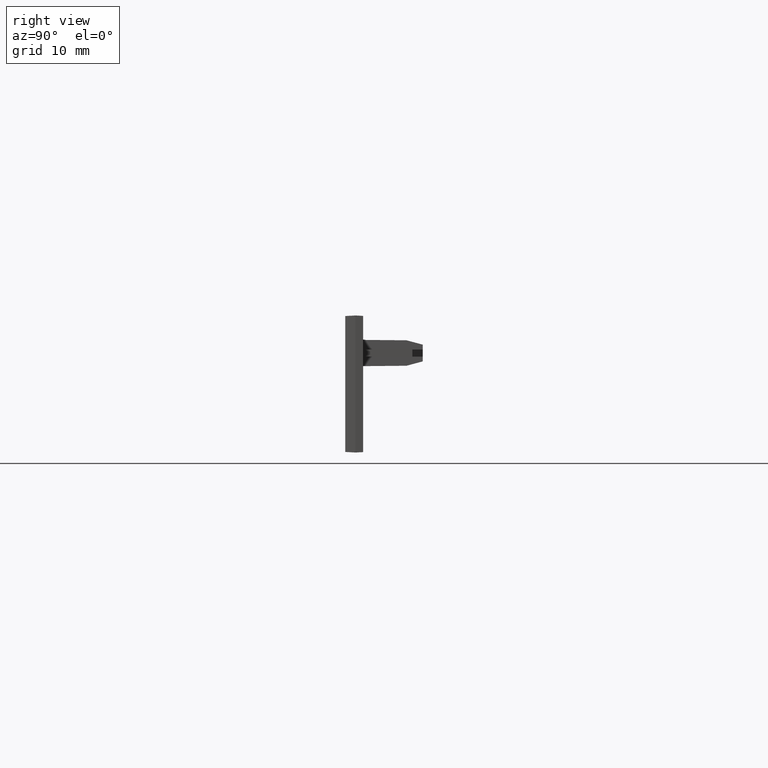
[diagram: clean part render]
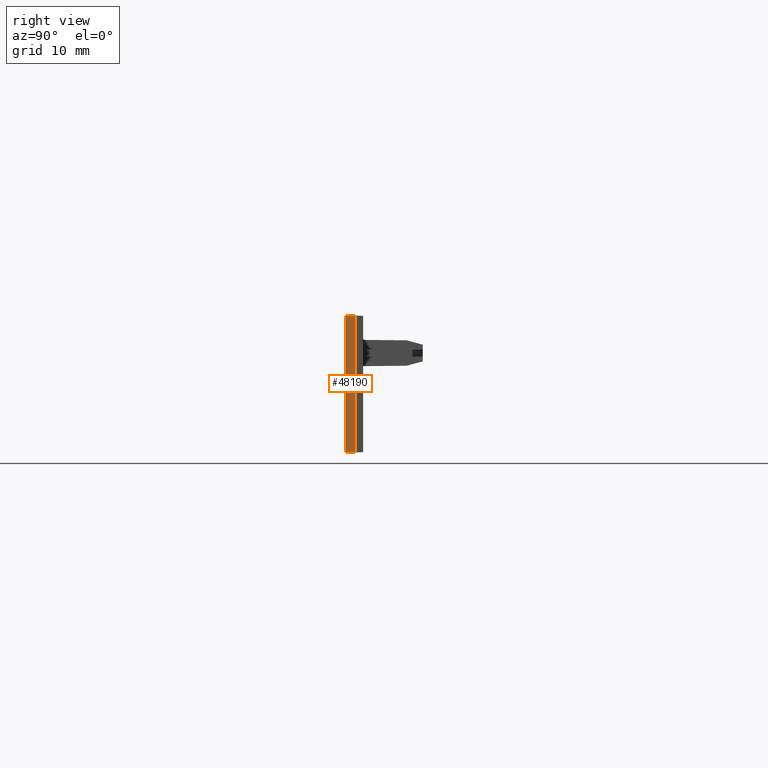
[diagram: same view with one face highlighted and labeled with its STEP entity id]
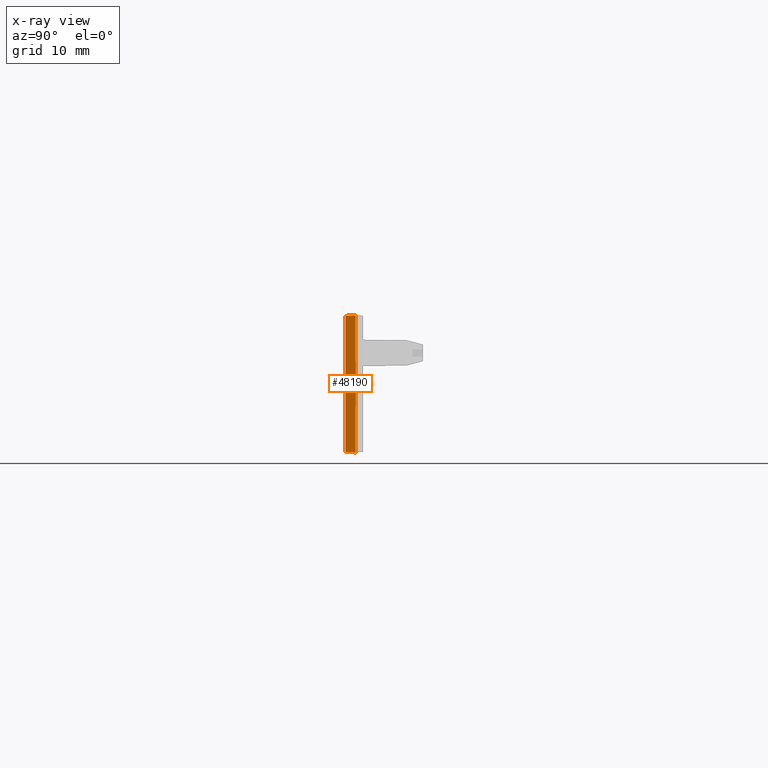
[diagram: x-ray of the same camera — body ghosted, the highlighted face saturated]
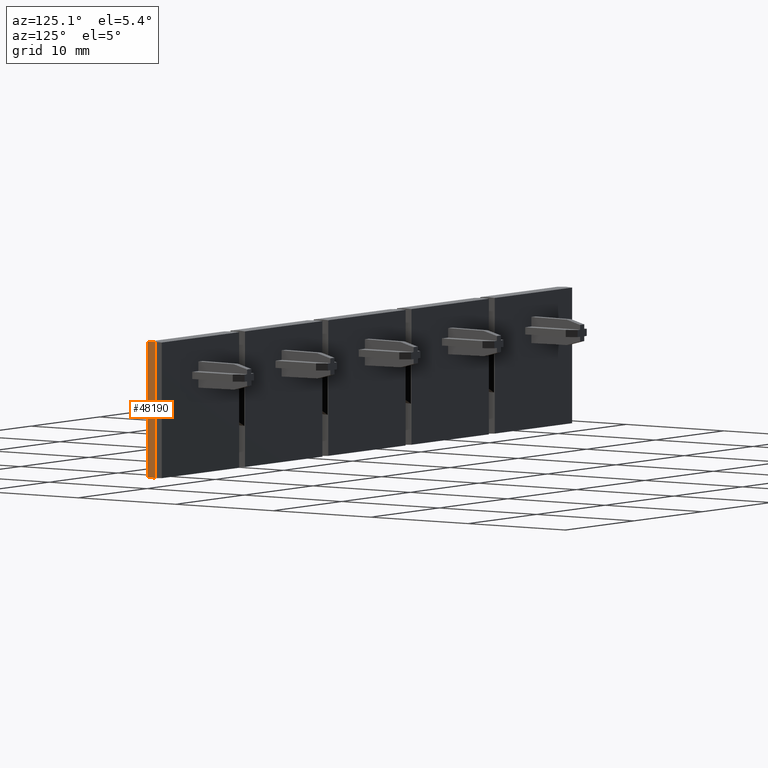
[diagram: same view with one face highlighted and labeled with its STEP entity id]
A machine part, right view. The second image highlights one B-rep face of the part: STEP entity #48190.
The next image is the same camera in x-ray: the body ghosted, the highlighted face saturated — about 0% of this face is hidden behind the body in this view.
A second angle (auxiliary view) of the same face is appended — the face is thin or edge-on in the first view.
In plain terms, the highlighted planar face has unit normal (-0.9986, 0.0523, -0).
Its self-contained STEP definition (entity closure, byte-faithful):
#14440=CARTESIAN_POINT('',(13.1177358666438,3.55633679794292,
-3.25499999997569));
#14450=VERTEX_POINT('',#14440);
#37390=CARTESIAN_POINT('',(13.1629727238767,4.41950785561214,
-3.20976312170207));
#37400=VERTEX_POINT('',#37390);
#37450=CARTESIAN_POINT('',(25.1869785550004,4.41950785561214,
-3.20976312172748));
#37460=DIRECTION('',(1.,-1.95344841822176E-24,-2.1134619990613E-12));
#37470=VECTOR('',#37460,1.);
#37480=LINE('',#37450,#37470);
#37490=CARTESIAN_POINT('',(24.5724989468498,4.41950785561214,
-3.20976312172618));
#37500=VERTEX_POINT('',#37490);
#37510=EDGE_CURVE('',#37400,#37500,#37480,.T.);
#43390=CARTESIAN_POINT('',(26.173556603604,-26.1304921377626,
-4.81082077847489));
#43400=DIRECTION('',(0.0522644276888608,-0.997264688634231,
-0.0522644276886815));
#43410=VECTOR('',#43400,1.);
#43420=LINE('',#43390,#43410);
#43430=CARTESIAN_POINT('',(24.6177358251237,3.5563367979429,-3.255));
#43440=VERTEX_POINT('',#43430);
#43450=EDGE_CURVE('',#37500,#43440,#43420,.T.);
#47980=CARTESIAN_POINT('',(14.0477118454716,3.55633679847646,
-3.2549999999497));
#47990=DIRECTION('',(2.11056557284397E-12,-0.0523359562428015,
0.998629534754581));
#48000=DIRECTION('',(1.1416764393489E-13,0.998629534754581,
0.0523359562428015));
#48010=AXIS2_PLACEMENT_3D('',#47980,#47990,#48000);
#48020=PLANE('',#48010);
#48030=CARTESIAN_POINT('',(23.9869785548615,3.55633679794293,
-3.25499999999866));
#48040=DIRECTION('',(-1.,3.55271367879687E-15,2.11364818889553E-12));
#48050=VECTOR('',#48040,1.);
#48060=LINE('',#48030,#48050);
#48070=EDGE_CURVE('',#43440,#14450,#48060,.T.);
#48080=ORIENTED_EDGE('',*,*,#48070,.T.);
#48090=ORIENTED_EDGE('',*,*,#43450,.T.);
#48100=ORIENTED_EDGE('',*,*,#37510,.T.);
#48110=CARTESIAN_POINT('',(11.5619150671153,-26.1304921377626,
-4.81082077844402));
#48120=DIRECTION('',(0.0522644276890959,0.997264688634231,
0.0522644276884606));
#48130=VECTOR('',#48120,1.);
#48140=LINE('',#48110,#48130);
#48150=EDGE_CURVE('',#14450,#37400,#48140,.T.);
#48160=ORIENTED_EDGE('',*,*,#48150,.T.);
#48170=EDGE_LOOP('',(#48160,#48100,#48090,#48080));
#48180=FACE_OUTER_BOUND('',#48170,.T.);
#48190=ADVANCED_FACE('',(#48180),#48020,.F.);